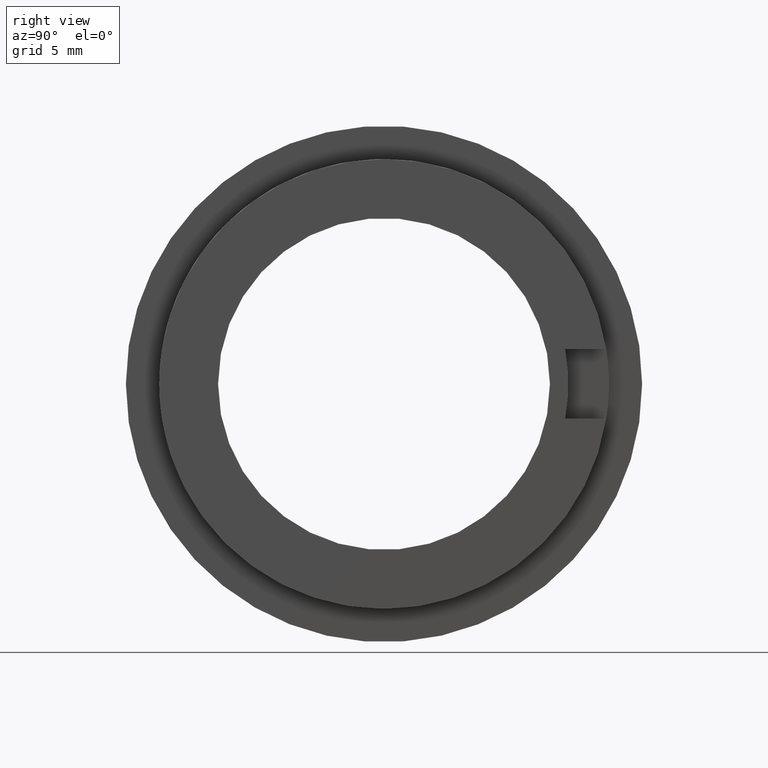
[diagram: clean part render]
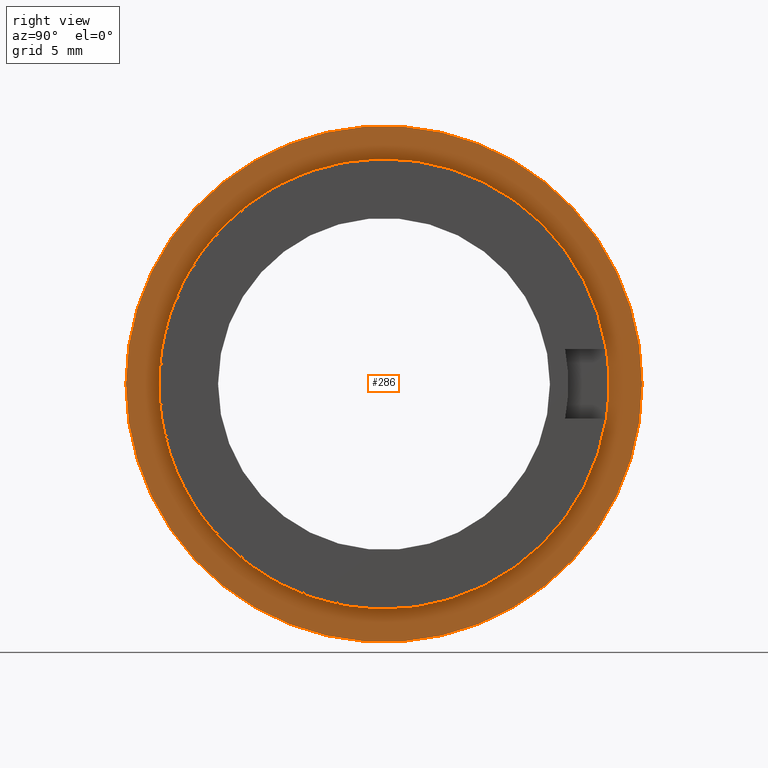
[diagram: same view with one face highlighted and labeled with its STEP entity id]
A machine part, right view. The second image highlights one B-rep face of the part: STEP entity #286.
In plain terms, the highlighted planar face has unit normal (1, 0, 0).
Its self-contained STEP definition (entity closure, byte-faithful):
#252=CARTESIAN_POINT('',(-4.972580550947500,22.153225097050932,0.0));
#253=VERTEX_POINT('',#252);
#254=CARTESIAN_POINT('',(-4.972580550947500,4.653225097050933,0.0));
#255=DIRECTION('',(1.0,0.0,0.0));
#256=DIRECTION('',(0.0,1.0,0.0));
#257=AXIS2_PLACEMENT_3D('',#254,#255,#256);
#258=CIRCLE('',#257,17.500000000000000);
#259=EDGE_CURVE('',#253,#253,#258,.T.);
#267=CARTESIAN_POINT('',(-4.972580550947500,21.028225097050935,0.0));
#268=DIRECTION('',(1.0,0.0,0.0));
#269=DIRECTION('',(0.0,0.0,-1.0));
#270=AXIS2_PLACEMENT_3D('',#267,#268,#269);
#271=PLANE('',#270);
#272=ORIENTED_EDGE('',*,*,#259,.T.);
#273=EDGE_LOOP('',(#272));
#274=FACE_OUTER_BOUND('',#273,.T.);
#275=CARTESIAN_POINT('',(-4.972580550947499,19.903225097050935,0.0));
#276=VERTEX_POINT('',#275);
#277=CARTESIAN_POINT('',(-4.972580550947499,4.653225097050933,0.0));
#278=DIRECTION('',(1.0,0.0,0.0));
#279=DIRECTION('',(0.0,1.0,0.0));
#280=AXIS2_PLACEMENT_3D('',#277,#278,#279);
#281=CIRCLE('',#280,15.250000000000002);
#282=EDGE_CURVE('',#276,#276,#281,.T.);
#283=ORIENTED_EDGE('',*,*,#282,.F.);
#284=EDGE_LOOP('',(#283));
#285=FACE_BOUND('',#284,.T.);
#286=ADVANCED_FACE('',(#274,#285),#271,.T.);